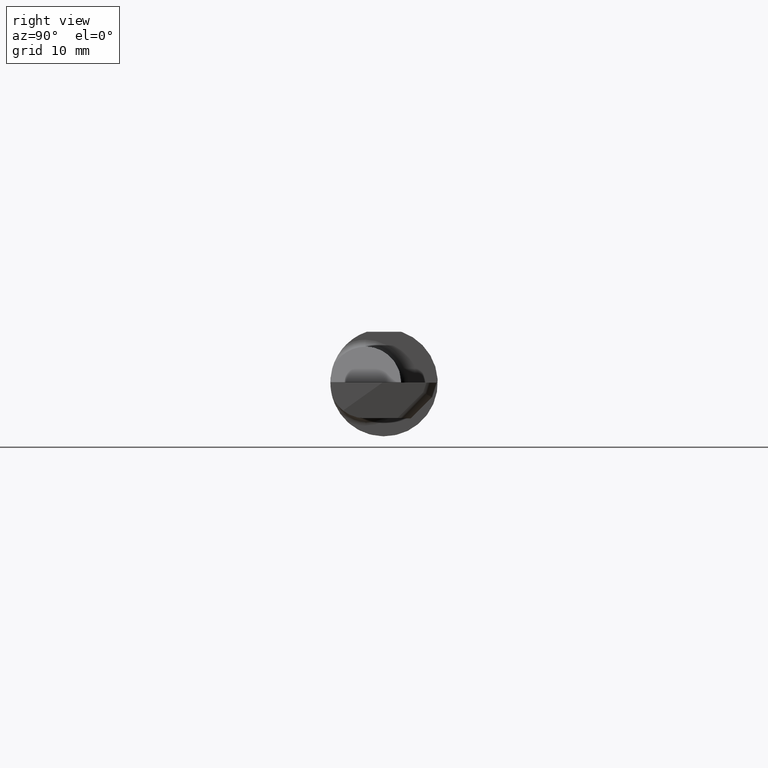
[diagram: clean part render]
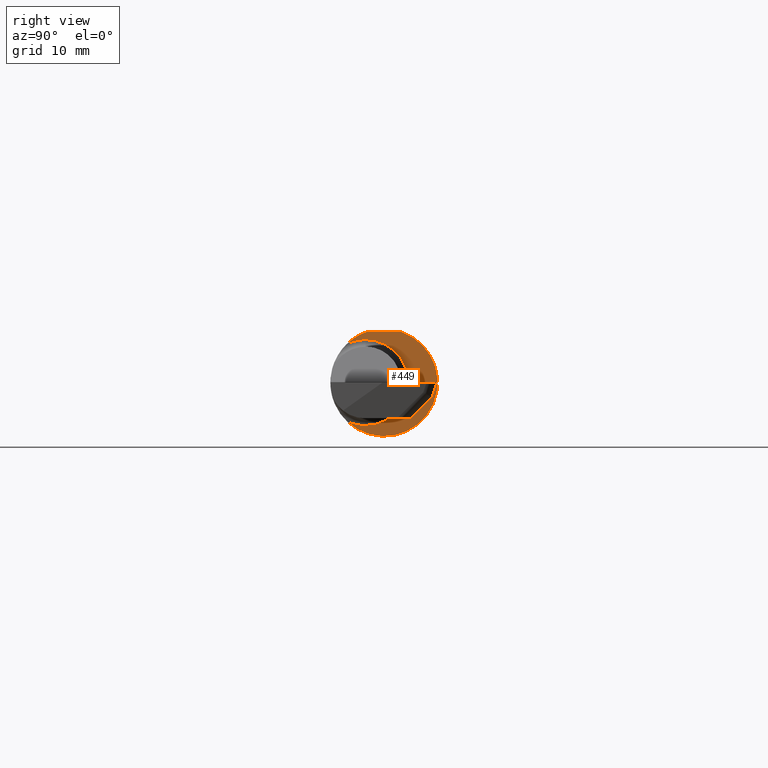
[diagram: same view with one face highlighted and labeled with its STEP entity id]
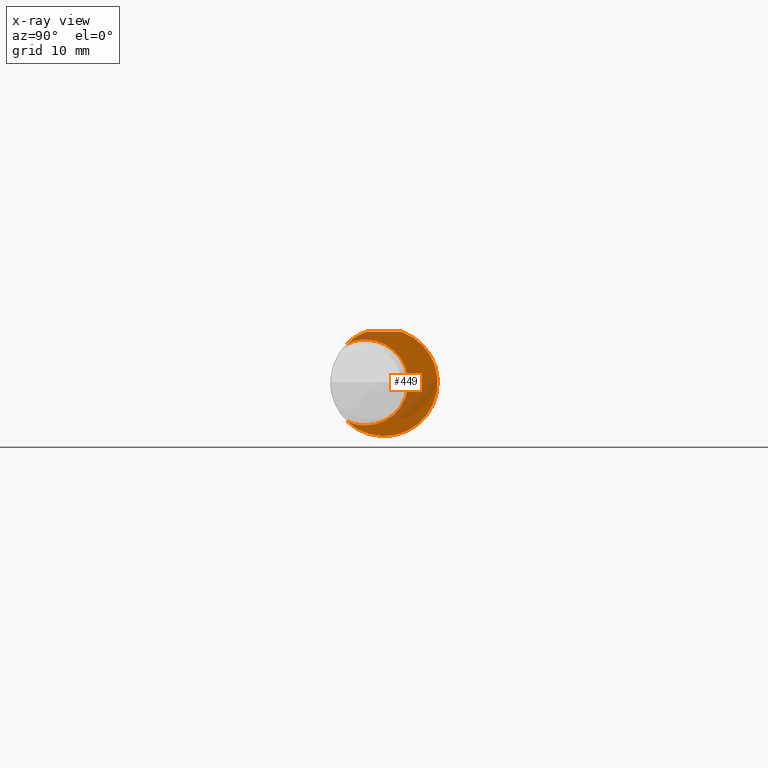
[diagram: x-ray of the same camera — body ghosted, the highlighted face saturated]
A machine part, right view. The second image highlights one B-rep face of the part: STEP entity #449.
The next image is the same camera in x-ray: the body ghosted, the highlighted face saturated — about 24% of this face is hidden behind the body in this view.
In plain terms, the highlighted planar face has unit normal (1, 0, 0).
Its self-contained STEP definition (entity closure, byte-faithful):
#33 = AXIS2_PLACEMENT_3D ( 'NONE', #827, #360, #440 ) ;
#64 = ORIENTED_EDGE ( 'NONE', *, *, #968, .T. ) ;
#78 = DIRECTION ( 'NONE',  ( 0.000000000000000000, 0.000000000000000000, -1.000000000000000000 ) ) ;
#103 = ORIENTED_EDGE ( 'NONE', *, *, #768, .T. ) ;
#105 = EDGE_CURVE ( 'NONE', #314, #586, #1003, .T. ) ;
#136 = CARTESIAN_POINT ( 'NONE',  ( 1.607999999999999874, 0.1000000000000000056, 0.1773499999999999799 ) ) ;
#155 = AXIS2_PLACEMENT_3D ( 'NONE', #634, #946, #251 ) ;
#165 = DIRECTION ( 'NONE',  ( 1.000000000000000000, 0.000000000000000000, 0.000000000000000000 ) ) ;
#174 = VERTEX_POINT ( 'NONE', #997 ) ;
#184 = CIRCLE ( 'NONE', #427, 0.1499999999999999667 ) ;
#251 = DIRECTION ( 'NONE',  ( 0.000000000000000000, 0.000000000000000000, -1.000000000000000000 ) ) ;
#278 = VERTEX_POINT ( 'NONE', #472 ) ;
#314 = VERTEX_POINT ( 'NONE', #861 ) ;
#360 = DIRECTION ( 'NONE',  ( 1.000000000000000000, 0.000000000000000000, 0.000000000000000000 ) ) ;
#374 = EDGE_CURVE ( 'NONE', #174, #278, #444, .T. ) ;
#375 = CARTESIAN_POINT ( 'NONE',  ( 1.607999999999999874, -0.1290791507268553850, 0.1357887894770173631 ) ) ;
#395 = AXIS2_PLACEMENT_3D ( 'NONE', #701, #606, #856 ) ;
#400 = DIRECTION ( 'NONE',  ( -1.000000000000000000, -0.000000000000000000, -0.000000000000000000 ) ) ;
#427 = AXIS2_PLACEMENT_3D ( 'NONE', #868, #400, #708 ) ;
#440 = DIRECTION ( 'NONE',  ( 0.000000000000000000, 0.000000000000000000, -1.000000000000000000 ) ) ;
#444 = CIRCLE ( 'NONE', #155, 0.1499999999999999667 ) ;
#449 = ADVANCED_FACE ( 'NONE', ( #883 ), #493, .T. ) ;
#452 = DIRECTION ( 'NONE',  ( 0.000000000000000000, -1.000000000000000000, 0.000000000000000000 ) ) ;
#471 = DIRECTION ( 'NONE',  ( 0.000000000000000000, 0.000000000000000000, -1.000000000000000000 ) ) ;
#472 = CARTESIAN_POINT ( 'NONE',  ( 1.607999999999999874, -0.06535000000000003306, -0.1499999999999999667 ) ) ;
#482 = ORIENTED_EDGE ( 'NONE', *, *, #860, .T. ) ;
#493 = PLANE ( 'NONE',  #33 ) ;
#551 = CARTESIAN_POINT ( 'NONE',  ( 1.607999999999999874, 0.000000000000000000, 0.000000000000000000 ) ) ;
#586 = VERTEX_POINT ( 'NONE', #698 ) ;
#588 = VERTEX_POINT ( 'NONE', #375 ) ;
#606 = DIRECTION ( 'NONE',  ( -1.000000000000000000, -0.000000000000000000, -0.000000000000000000 ) ) ;
#615 = CARTESIAN_POINT ( 'NONE',  ( 1.607999999999999874, 0.000000000000000000, 0.000000000000000000 ) ) ;
#634 = CARTESIAN_POINT ( 'NONE',  ( 1.607999999999999874, -0.06535000000000003306, 0.000000000000000000 ) ) ;
#637 = CIRCLE ( 'NONE', #928, 0.1873499999999999888 ) ;
#638 = CARTESIAN_POINT ( 'NONE',  ( 1.607999999999999874, -0.1290791507268553850, -0.1357887894770173631 ) ) ;
#649 = ORIENTED_EDGE ( 'NONE', *, *, #912, .T. ) ;
#673 = CIRCLE ( 'NONE', #395, 0.1499999999999999667 ) ;
#698 = CARTESIAN_POINT ( 'NONE',  ( 1.607999999999999874, -0.06039039658755174234, 0.1773499999999999799 ) ) ;
#701 = CARTESIAN_POINT ( 'NONE',  ( 1.607999999999999874, -0.06535000000000003306, 0.000000000000000000 ) ) ;
#708 = DIRECTION ( 'NONE',  ( 0.000000000000000000, 0.000000000000000000, -1.000000000000000000 ) ) ;
#768 = EDGE_CURVE ( 'NONE', #949, #314, #773, .T. ) ;
#773 = CIRCLE ( 'NONE', #913, 0.1873499999999999888 ) ;
#788 = VECTOR ( 'NONE', #452, 39.37007874015748143 ) ;
#826 = EDGE_LOOP ( 'NONE', ( #64, #482, #985, #649, #103, #1000 ) ) ;
#827 = CARTESIAN_POINT ( 'NONE',  ( 1.607999999999999874, 0.2596499999999999364, 0.000000000000000000 ) ) ;
#856 = DIRECTION ( 'NONE',  ( 0.000000000000000000, 3.528636991816341026E-15, -1.000000000000000000 ) ) ;
#860 = EDGE_CURVE ( 'NONE', #588, #174, #673, .T. ) ;
#861 = CARTESIAN_POINT ( 'NONE',  ( 1.607999999999999874, 0.06039039658753698331, 0.1773499999999999799 ) ) ;
#868 = CARTESIAN_POINT ( 'NONE',  ( 1.607999999999999874, -0.06535000000000003306, 0.000000000000000000 ) ) ;
#883 = FACE_OUTER_BOUND ( 'NONE', #826, .T. ) ;
#912 = EDGE_CURVE ( 'NONE', #278, #949, #184, .T. ) ;
#913 = AXIS2_PLACEMENT_3D ( 'NONE', #615, #994, #78 ) ;
#928 = AXIS2_PLACEMENT_3D ( 'NONE', #551, #165, #471 ) ;
#946 = DIRECTION ( 'NONE',  ( -1.000000000000000000, -0.000000000000000000, -0.000000000000000000 ) ) ;
#949 = VERTEX_POINT ( 'NONE', #638 ) ;
#968 = EDGE_CURVE ( 'NONE', #586, #588, #637, .T. ) ;
#985 = ORIENTED_EDGE ( 'NONE', *, *, #374, .T. ) ;
#994 = DIRECTION ( 'NONE',  ( 1.000000000000000000, 0.000000000000000000, 0.000000000000000000 ) ) ;
#997 = CARTESIAN_POINT ( 'NONE',  ( 1.607999999999999874, -0.06535000000000000531, 0.1499999999999999667 ) ) ;
#1000 = ORIENTED_EDGE ( 'NONE', *, *, #105, .T. ) ;
#1003 = LINE ( 'NONE', #136, #788 ) ;